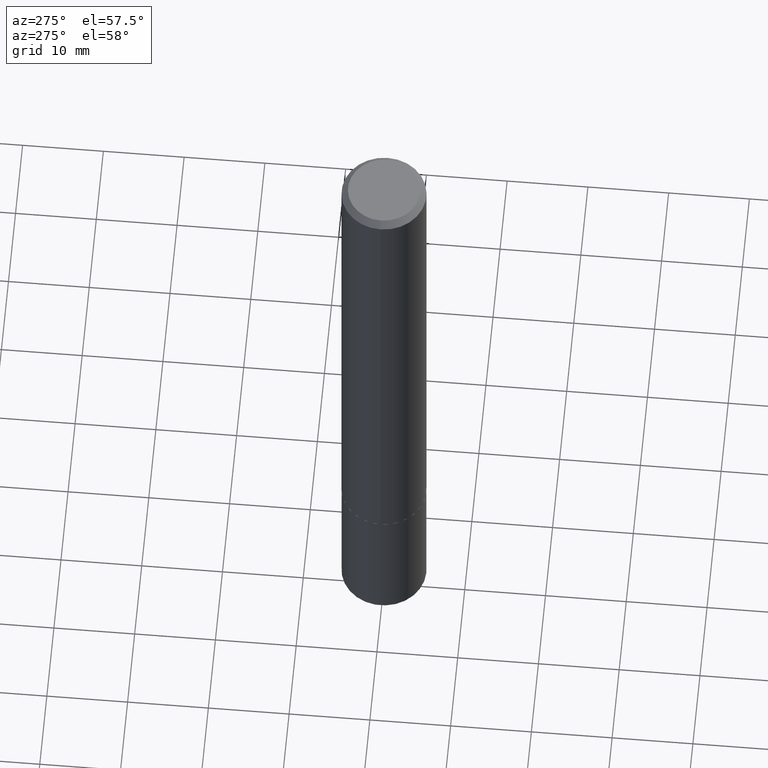
[diagram: clean part render]
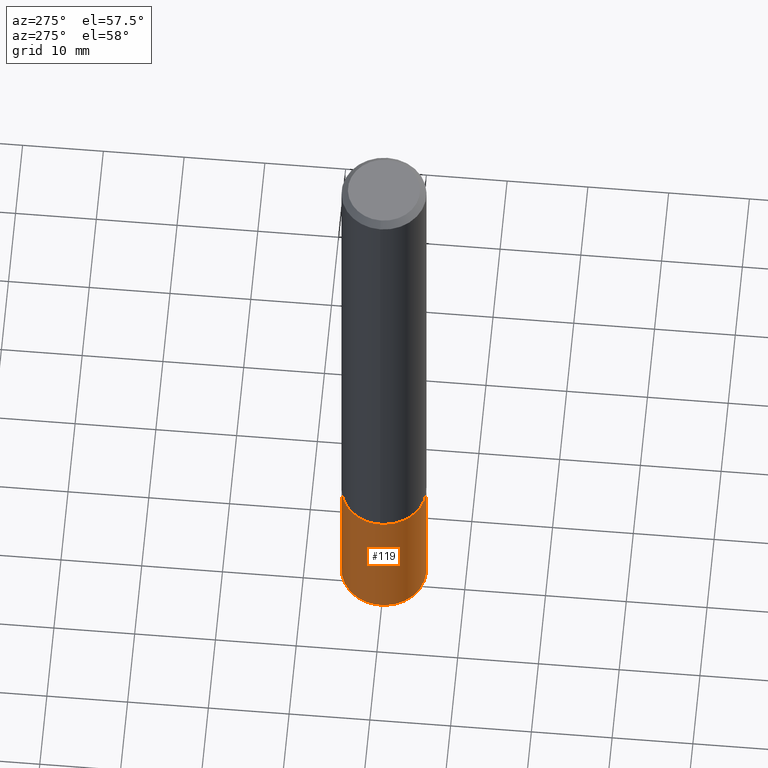
[diagram: same view with one face highlighted and labeled with its STEP entity id]
A machine part, auxiliary view. The second image highlights one B-rep face of the part: STEP entity #119.
In plain terms, the highlighted cylindrical surface (partial cylindrical patch) has radius 5.2502 mm, axis along (-0, 0, 1).
Its self-contained STEP definition (entity closure, byte-faithful):
#15 = DIRECTION ( 'NONE',  ( -2.440808573985819883E-29, 3.498155056596511424E-15, 1.000000000000000000 ) ) ;
#16 = DIRECTION ( 'NONE',  ( -6.982962677686265133E-15, -1.000000000000000000, 2.643297526525653668E-15 ) ) ;
#26 = LINE ( 'NONE', #55, #351 ) ;
#44 = CARTESIAN_POINT ( 'NONE',  ( 1.468691834816192917E-15, 0.2066999999999905857, -2.696800000000000086 ) ) ;
#55 = CARTESIAN_POINT ( 'NONE',  ( -1.443378385477685346E-15, -0.2067000000000094317, -2.696799999999998754 ) ) ;
#65 = EDGE_CURVE ( 'NONE', #319, #248, #367, .T. ) ;
#70 = ORIENTED_EDGE ( 'NONE', *, *, #148, .F. ) ;
#82 = AXIS2_PLACEMENT_3D ( 'NONE', #193, #15, #16 ) ;
#84 = EDGE_CURVE ( 'NONE', #319, #153, #220, .T. ) ;
#92 = CARTESIAN_POINT ( 'NONE',  ( -1.443378385477685346E-15, -0.2067000000000094317, -2.696799999999998754 ) ) ;
#98 = EDGE_LOOP ( 'NONE', ( #187, #371, #298, #70 ) ) ;
#119 = ADVANCED_FACE ( 'NONE', ( #223 ), #280, .T. ) ;
#134 = CARTESIAN_POINT ( 'NONE',  ( 1.468691834816211061E-15, 0.2066999999999905857, -2.696800000000000086 ) ) ;
#139 = DIRECTION ( 'NONE',  ( -2.440808573985819883E-29, 3.498155056596511424E-15, 1.000000000000000000 ) ) ;
#148 = EDGE_CURVE ( 'NONE', #153, #363, #221, .T. ) ;
#151 = AXIS2_PLACEMENT_3D ( 'NONE', #316, #226, #348 ) ;
#153 = VERTEX_POINT ( 'NONE', #134 ) ;
#158 = VECTOR ( 'NONE', #162, 39.37007874015748143 ) ;
#162 = DIRECTION ( 'NONE',  ( -2.440808573985819883E-29, 3.498155056596511424E-15, 1.000000000000000000 ) ) ;
#187 = ORIENTED_EDGE ( 'NONE', *, *, #84, .F. ) ;
#193 = CARTESIAN_POINT ( 'NONE',  ( 6.594940276520074658E-29, -9.415826874592193991E-15, -2.696799999999999642 ) ) ;
#219 = CARTESIAN_POINT ( 'NONE',  ( 8.381288385710751773E-29, -1.197601235476794621E-14, -3.428667352577176697 ) ) ;
#220 = LINE ( 'NONE', #44, #158 ) ;
#221 = CIRCLE ( 'NONE', #82, 0.2067000000000000226 ) ;
#223 = FACE_OUTER_BOUND ( 'NONE', #98, .T. ) ;
#226 = DIRECTION ( 'NONE',  ( -2.440808573985819883E-29, 3.498155056596511424E-15, 1.000000000000000000 ) ) ;
#248 = VERTEX_POINT ( 'NONE', #385 ) ;
#280 = CYLINDRICAL_SURFACE ( 'NONE', #151, 0.2067000000000000226 ) ;
#298 = ORIENTED_EDGE ( 'NONE', *, *, #330, .T. ) ;
#316 = CARTESIAN_POINT ( 'NONE',  ( 6.594940276520074658E-29, -9.415826874592193991E-15, -2.696799999999999642 ) ) ;
#319 = VERTEX_POINT ( 'NONE', #323 ) ;
#323 = CARTESIAN_POINT ( 'NONE',  ( 1.468691834816210075E-15, 0.2066999999999879489, -3.428667352577177141 ) ) ;
#328 = DIRECTION ( 'NONE',  ( -2.440808573985819883E-29, 3.498155056596511424E-15, 1.000000000000000000 ) ) ;
#330 = EDGE_CURVE ( 'NONE', #248, #363, #26, .T. ) ;
#346 = AXIS2_PLACEMENT_3D ( 'NONE', #219, #139, #374 ) ;
#348 = DIRECTION ( 'NONE',  ( -6.982962677686265133E-15, -1.000000000000000000, 2.643297526525653668E-15 ) ) ;
#351 = VECTOR ( 'NONE', #328, 39.37007874015748143 ) ;
#363 = VERTEX_POINT ( 'NONE', #92 ) ;
#367 = CIRCLE ( 'NONE', #346, 0.2067000000000000226 ) ;
#371 = ORIENTED_EDGE ( 'NONE', *, *, #65, .T. ) ;
#374 = DIRECTION ( 'NONE',  ( -6.982962677686265133E-15, -1.000000000000000000, 2.643297526525653668E-15 ) ) ;
#385 = CARTESIAN_POINT ( 'NONE',  ( -1.443378385477667202E-15, -0.2067000000000119297, -3.428667352577175809 ) ) ;